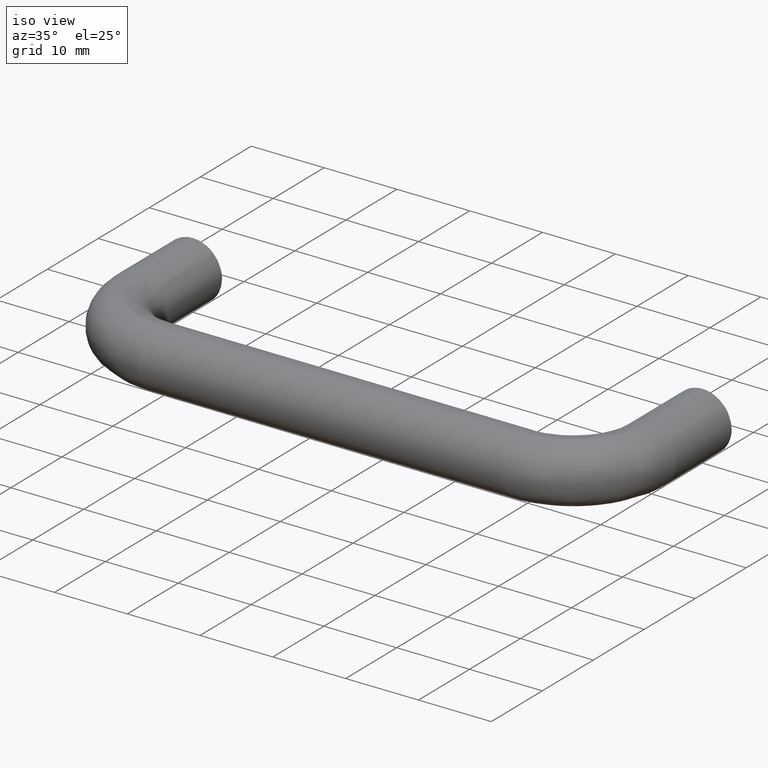
[diagram: clean part render]
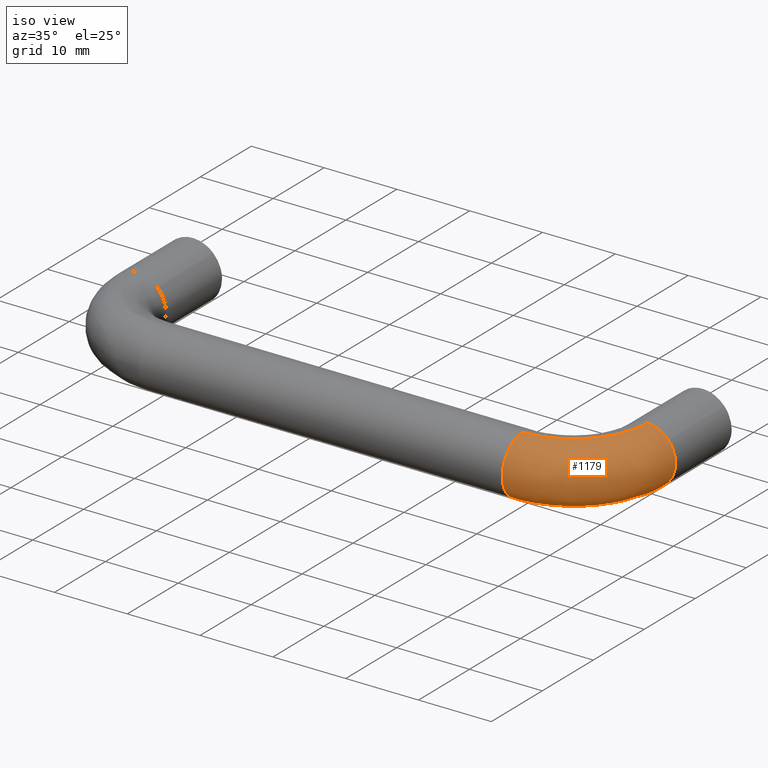
[diagram: same view with one face highlighted and labeled with its STEP entity id]
A machine part, iso view. The second image highlights one B-rep face of the part: STEP entity #1179.
In plain terms, the highlighted face is a freeform B-spline surface patch.
Its self-contained STEP definition (entity closure, byte-faithful):
#430=CARTESIAN_POINT('',(69.899479617896844,-11.000000000284841,-3.998736757124909));
#431=VERTEX_POINT('',#430);
#432=CARTESIAN_POINT('',(72.286842443538333,-11.0,-3.281821390391567));
#433=VERTEX_POINT('',#432);
#434=CARTESIAN_POINT('',(69.899479617896844,-11.000000000284842,-3.998736757124909));
#435=CARTESIAN_POINT('',(69.949731871176525,-10.999999999999996,-4.000000000000001));
#436=CARTESIAN_POINT('',(70.0,-11.0,-4.0));
#437=CARTESIAN_POINT('',(71.256192549055712,-10.999999999999998,-4.000000000000001));
#438=CARTESIAN_POINT('',(72.286842443538333,-11.000000000000002,-3.281821390391567));
#446=(BOUNDED_CURVE()B_SPLINE_CURVE(2,(#434,#435,#436,#437,#438),.UNSPECIFIED.,.F.,.U.)B_SPLINE_CURVE_WITH_KNOTS((3,2,3),(0.245579891740944,0.250000000000000,0.348251884123429),.UNSPECIFIED.)CURVE()GEOMETRIC_REPRESENTATION_ITEM()RATIONAL_B_SPLINE_CURVE((0.989826157616337,0.994821521058005,1.0,0.884890757618410,0.860259114788914))REPRESENTATION_ITEM(''));
#447=EDGE_CURVE('',#431,#433,#446,.T.);
#464=CARTESIAN_POINT('',(70.100520384497344,-11.000000000617680,3.998736757064723));
#465=VERTEX_POINT('',#464);
#481=CARTESIAN_POINT('',(72.995823056830687,-11.000000000159060,2.650479996171793));
#482=VERTEX_POINT('',#481);
#483=CARTESIAN_POINT('',(72.995823056830702,-11.000000000159060,2.650479996171793));
#484=CARTESIAN_POINT('',(71.841711066837405,-11.000000000341874,3.954966643588575));
#485=CARTESIAN_POINT('',(70.100520384497344,-11.000000000617677,3.998736757064723));
#493=(BOUNDED_CURVE()B_SPLINE_CURVE(2,(#483,#484,#485),.UNSPECIFIED.,.F.,.U.)B_SPLINE_CURVE_WITH_KNOTS((3,3),(0.615779868226999,0.745579891531413),.UNSPECIFIED.)CURVE()GEOMETRIC_REPRESENTATION_ITEM()RATIONAL_B_SPLINE_CURVE((0.854350161652691,0.843133304385698,0.989826157142736))REPRESENTATION_ITEM(''));
#494=EDGE_CURVE('',#482,#465,#493,.T.);
#563=CARTESIAN_POINT('',(74.000000000000014,-11.0,0.0));
#564=VERTEX_POINT('',#563);
#565=CARTESIAN_POINT('',(72.286842443538333,-11.000000000000002,-3.281821390391567));
#566=CARTESIAN_POINT('',(74.000000000000028,-11.0,-2.088057030130858));
#567=CARTESIAN_POINT('',(74.000000000000014,-11.0,0.0));
#575=(BOUNDED_CURVE()B_SPLINE_CURVE(2,(#565,#566,#567),.UNSPECIFIED.,.F.,.U.)B_SPLINE_CURVE_WITH_KNOTS((3,3),(0.348251884123429,0.500000000000000),.UNSPECIFIED.)CURVE()GEOMETRIC_REPRESENTATION_ITEM()RATIONAL_B_SPLINE_CURVE((0.860259114788914,0.822216023568137,1.0))REPRESENTATION_ITEM(''));
#576=EDGE_CURVE('',#433,#564,#575,.T.);
#608=CARTESIAN_POINT('',(74.000000000000014,-11.0,0.0));
#609=CARTESIAN_POINT('',(74.0,-11.0,1.515464134450860));
#610=CARTESIAN_POINT('',(72.995823056830702,-11.000000000159060,2.650479996171793));
#618=(BOUNDED_CURVE()B_SPLINE_CURVE(2,(#608,#609,#610),.UNSPECIFIED.,.F.,.U.)B_SPLINE_CURVE_WITH_KNOTS((3,3),(0.500000000000000,0.615779868226999),.UNSPECIFIED.)CURVE()GEOMETRIC_REPRESENTATION_ITEM()RATIONAL_B_SPLINE_CURVE((1.0,0.864355446884787,0.854350161652691))REPRESENTATION_ITEM(''));
#619=EDGE_CURVE('',#564,#482,#618,.T.);
#741=CARTESIAN_POINT('',(59.999989025169832,-20.899480271524620,-3.998736773556025));
#742=VERTEX_POINT('',#741);
#756=CARTESIAN_POINT('',(60.0,-25.0,0.0));
#757=VERTEX_POINT('',#756);
#758=CARTESIAN_POINT('',(59.999989025169825,-20.899480271524627,-3.998736773556026));
#759=CARTESIAN_POINT('',(59.999989092418183,-20.949732198310265,-4.000000000000251));
#760=CARTESIAN_POINT('',(59.999989161378252,-20.999999999999989,-4.000000000000249));
#761=CARTESIAN_POINT('',(59.999994648793326,-25.0,-4.000000000000123));
#762=CARTESIAN_POINT('',(60.0,-25.0,0.0));
#770=(BOUNDED_CURVE()B_SPLINE_CURVE(2,(#758,#759,#760,#761,#762),.UNSPECIFIED.,.F.,.U.)B_SPLINE_CURVE_WITH_KNOTS((3,2,3),(0.245579920357062,0.250000000000000,0.500000000000000),.UNSPECIFIED.)CURVE()GEOMETRIC_REPRESENTATION_ITEM()RATIONAL_B_SPLINE_CURVE((0.989826222297073,0.994821554583873,1.0,0.707106781186548,1.0))REPRESENTATION_ITEM(''));
#771=EDGE_CURVE('',#742,#757,#770,.T.);
#773=CARTESIAN_POINT('',(60.000000000226649,-21.100520383061760,3.998736757100811));
#774=VERTEX_POINT('',#773);
#775=CARTESIAN_POINT('',(60.0,-25.0,0.0));
#776=CARTESIAN_POINT('',(59.999999999999993,-24.999999999999996,3.900711502208163));
#777=CARTESIAN_POINT('',(60.000000000226642,-21.100520383061767,3.998736757100811));
#785=(BOUNDED_CURVE()B_SPLINE_CURVE(2,(#775,#776,#777),.UNSPECIFIED.,.F.,.U.)B_SPLINE_CURVE_WITH_KNOTS((3,3),(0.500000000000000,0.745579891657051),.UNSPECIFIED.)CURVE()GEOMETRIC_REPRESENTATION_ITEM()RATIONAL_B_SPLINE_CURVE((1.0,0.712285260226830,0.989826157426713))REPRESENTATION_ITEM(''));
#786=EDGE_CURVE('',#757,#774,#785,.T.);
#1107=CARTESIAN_POINT('',(59.999989025169825,-20.899480271524627,-3.998736773556025));
#1108=CARTESIAN_POINT('',(69.899479617656979,-20.899490593062186,-3.998736757133199));
#1109=CARTESIAN_POINT('',(69.899479617896844,-11.000000000284839,-3.998736757124909));
#1117=(BOUNDED_CURVE()B_SPLINE_CURVE(2,(#1107,#1108,#1109),.UNSPECIFIED.,.F.,.U.)B_SPLINE_CURVE_WITH_KNOTS((3,3),(-1.733069019353624,-0.253787686502041),.UNSPECIFIED.)CURVE()GEOMETRIC_REPRESENTATION_ITEM()RATIONAL_B_SPLINE_CURVE((0.889551575190497,0.630646640268328,0.894193516979420))REPRESENTATION_ITEM(''));
#1118=EDGE_CURVE('',#742,#431,#1117,.T.);
#1124=CARTESIAN_POINT('',(60.000000000226649,-21.100520383061763,3.998736757100812));
#1125=CARTESIAN_POINT('',(70.100520380537958,-21.100520381320042,3.998736757133198));
#1126=CARTESIAN_POINT('',(70.100520384497344,-11.000000000617680,3.998736757064723));
#1134=(BOUNDED_CURVE()B_SPLINE_CURVE(2,(#1124,#1125,#1126),.UNSPECIFIED.,.F.,.U.)B_SPLINE_CURVE_WITH_KNOTS((3,3),(-1.733067862686899,-0.253787686569957),.UNSPECIFIED.)CURVE()GEOMETRIC_REPRESENTATION_ITEM()RATIONAL_B_SPLINE_CURVE((0.889551170309450,0.630646846350485,0.894193516955220))REPRESENTATION_ITEM(''));
#1135=EDGE_CURVE('',#774,#465,#1134,.T.);
#1140=CARTESIAN_POINT('',(59.313784921440096,-20.817728882452322,-3.997283821962539));
#1141=CARTESIAN_POINT('',(70.602795969747447,-21.606779965052901,-3.997283821962540));
#1142=CARTESIAN_POINT('',(69.817985986172928,-10.317473283531646,-3.997283821962539));
#1143=CARTESIAN_POINT('',(59.311775967696136,-20.846471129324772,-3.998008108301611));
#1144=CARTESIAN_POINT('',(70.633836568133219,-21.637832226928069,-3.998008108301611));
#1145=CARTESIAN_POINT('',(69.846728985738679,-10.315475127785378,-3.998008108301611));
#1146=CARTESIAN_POINT('',(59.030941430120080,-24.864391220117202,-4.099257138906548));
#1147=CARTESIAN_POINT('',(74.973046527532702,-25.978672642308876,-4.099257138906549));
#1148=CARTESIAN_POINT('',(73.864754296609718,-10.036150057859860,-4.099257138906549));
#1149=CARTESIAN_POINT('',(59.023932607205403,-24.964666957727097,-0.100520381773350));
#1150=CARTESIAN_POINT('',(75.081340736847679,-26.087007543119046,-0.100520381773350));
#1151=CARTESIAN_POINT('',(73.965032660210341,-10.029178906919373,-0.100520381773350));
#1152=CARTESIAN_POINT('',(59.016923784290697,-25.064942695337010,3.898216375359850));
#1153=CARTESIAN_POINT('',(75.189634946162613,-26.195342443929221,3.898216375359849));
#1154=CARTESIAN_POINT('',(74.065311023811006,-10.022207755978890,3.898216375359848));
#1155=CARTESIAN_POINT('',(59.297745416564482,-21.047207241639455,3.999460753227438));
#1156=CARTESIAN_POINT('',(70.850624388220311,-21.854701504930581,3.999460753227437));
#1157=CARTESIAN_POINT('',(70.047470354870072,-10.301519989967337,3.999460753227438));
#1158=CARTESIAN_POINT('',(59.299741618815105,-21.018647431306668,4.000180442281753));
#1159=CARTESIAN_POINT('',(70.819780814770795,-21.823846342023707,4.000180442281754));
#1160=CARTESIAN_POINT('',(70.018909796621585,-10.303505462758734,4.000180442281752));
#1168=(BOUNDED_SURFACE()B_SPLINE_SURFACE(2,2,((#1140,#1143,#1146,#1149,#1152,#1155,#1158),(#1141,#1144,#1147,#1150,#1153,#1156,#1159),(#1142,#1145,#1148,#1151,#1154,#1157,#1160)),.UNSPECIFIED.,.F.,.F.,.U.)B_SPLINE_SURFACE_WITH_KNOTS((3,3),(3,1,2,1,3),(0.0,25.510903712524929),(0.0,0.068144276624173,6.695561274593705,13.322978272563240,13.390686116525210),.UNSPECIFIED.)GEOMETRIC_REPRESENTATION_ITEM()RATIONAL_B_SPLINE_SURFACE(((0.922241263446929,0.919480488685142,0.648218726162596,0.916719713923355,0.648218726162596,0.919462807196121,0.922205900468886),(0.606880097643420,0.605063372103790,0.426559794513562,0.603246646564160,0.426559794513562,0.605051736814621,0.606856827065082),(0.927377667002841,0.924601516163377,0.651828966890305,0.921825365323913,0.651828966890305,0.924583736197669,0.927342107071426)))REPRESENTATION_ITEM('')SURFACE());
#1169=ORIENTED_EDGE('',*,*,#619,.T.);
#1170=ORIENTED_EDGE('',*,*,#494,.T.);
#1171=ORIENTED_EDGE('',*,*,#1135,.F.);
#1172=ORIENTED_EDGE('',*,*,#786,.F.);
#1173=ORIENTED_EDGE('',*,*,#771,.F.);
#1174=ORIENTED_EDGE('',*,*,#1118,.T.);
#1175=ORIENTED_EDGE('',*,*,#447,.T.);
#1176=ORIENTED_EDGE('',*,*,#576,.T.);
#1177=EDGE_LOOP('',(#1169,#1170,#1171,#1172,#1173,#1174,#1175,#1176));
#1178=FACE_OUTER_BOUND('',#1177,.T.);
#1179=ADVANCED_FACE('',(#1178),#1168,.T.);